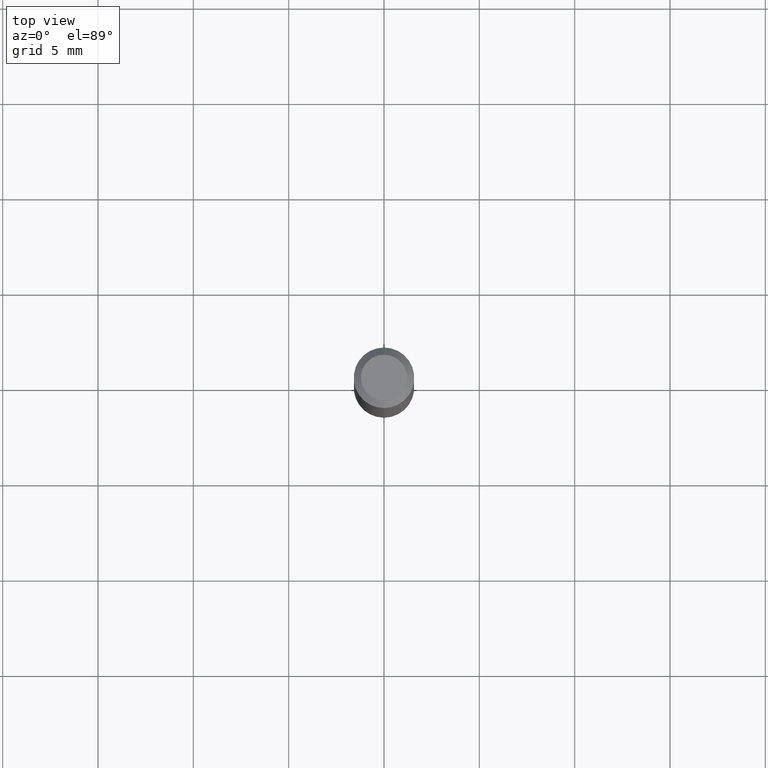
[diagram: clean part render]
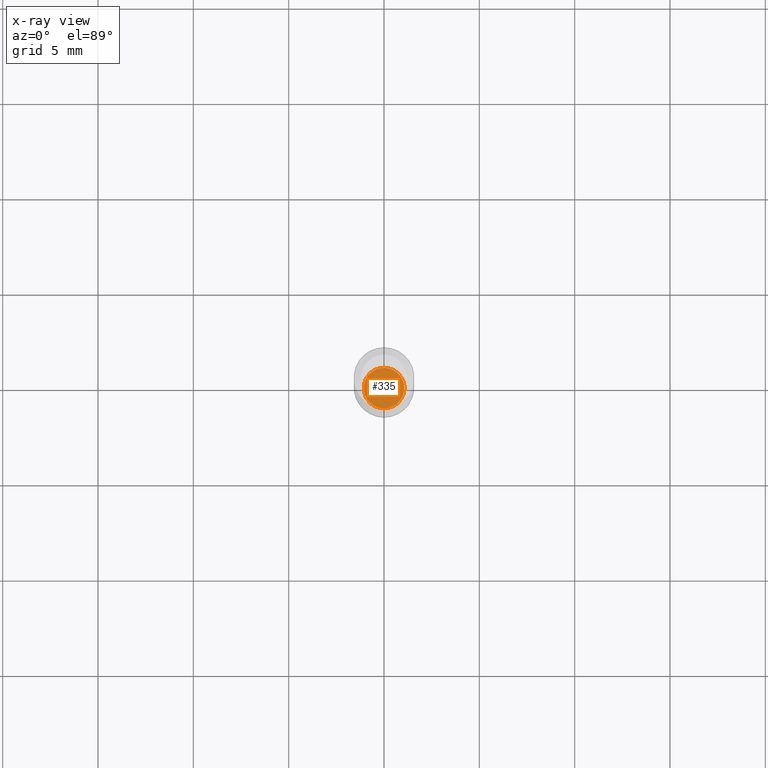
[diagram: x-ray — body ghosted, one internal face saturated and labeled with its STEP entity id]
A machine part, top view, then the same camera in x-ray: the body is ghosted and one INTERNAL B-rep face — a face not visible from any outside direction — is saturated and labeled: STEP entity #335.
In plain terms, the highlighted planar face has unit normal (-0, 0, 1).
Its self-contained STEP definition (entity closure, byte-faithful):
#32 = FACE_OUTER_BOUND ( 'NONE', #169, .T. ) ;
#33 = ORIENTED_EDGE ( 'NONE', *, *, #89, .F. ) ;
#41 = CARTESIAN_POINT ( 'NONE',  ( 3.002043058586724733E-16, 0.04199999999999565192, -1.245000000000000551 ) ) ;
#45 = CIRCLE ( 'NONE', #336, 0.04199999999999999567 ) ;
#71 = CARTESIAN_POINT ( 'NONE',  ( 3.044677143456071174E-29, -4.346796199952107706E-15, -1.245000000000000329 ) ) ;
#89 = EDGE_CURVE ( 'NONE', #450, #132, #45, .T. ) ;
#99 = AXIS2_PLACEMENT_3D ( 'NONE', #342, #383, #497 ) ;
#114 = DIRECTION ( 'NONE',  ( -2.445523810004875525E-29, 3.491402570242655808E-15, 1.000000000000000000 ) ) ;
#118 = CIRCLE ( 'NONE', #99, 0.04199999999999999567 ) ;
#132 = VERTEX_POINT ( 'NONE', #254 ) ;
#142 = EDGE_CURVE ( 'NONE', #132, #450, #118, .T. ) ;
#148 = PLANE ( 'NONE',  #344 ) ;
#169 = EDGE_LOOP ( 'NONE', ( #449, #33 ) ) ;
#212 = DIRECTION ( 'NONE',  ( -2.445523810004875805E-29, 3.491402570242655808E-15, 1.000000000000000000 ) ) ;
#254 = CARTESIAN_POINT ( 'NONE',  ( -2.932844324627926808E-16, -0.04200000000000434636, -1.244999999999999885 ) ) ;
#335 = ADVANCED_FACE ( 'NONE', ( #32 ), #148, .F. ) ;
#336 = AXIS2_PLACEMENT_3D ( 'NONE', #71, #212, #462 ) ;
#342 = CARTESIAN_POINT ( 'NONE',  ( 3.044677143456071174E-29, -4.346796199952107706E-15, -1.245000000000000329 ) ) ;
#344 = AXIS2_PLACEMENT_3D ( 'NONE', #466, #114, #432 ) ;
#383 = DIRECTION ( 'NONE',  ( -2.445523810004875805E-29, 3.491402570242655808E-15, 1.000000000000000000 ) ) ;
#432 = DIRECTION ( 'NONE',  ( -6.982962677686265922E-15, -1.000000000000000000, 3.491402570242655808E-15 ) ) ;
#449 = ORIENTED_EDGE ( 'NONE', *, *, #142, .F. ) ;
#450 = VERTEX_POINT ( 'NONE', #41 ) ;
#462 = DIRECTION ( 'NONE',  ( -6.982962677686265922E-15, -1.000000000000000000, 6.504399984914913214E-15 ) ) ;
#466 = CARTESIAN_POINT ( 'NONE',  ( 3.044677143456071174E-29, -4.346796199952107706E-15, -1.245000000000000329 ) ) ;
#497 = DIRECTION ( 'NONE',  ( -6.982962677686265922E-15, -1.000000000000000000, 6.504399984914913214E-15 ) ) ;